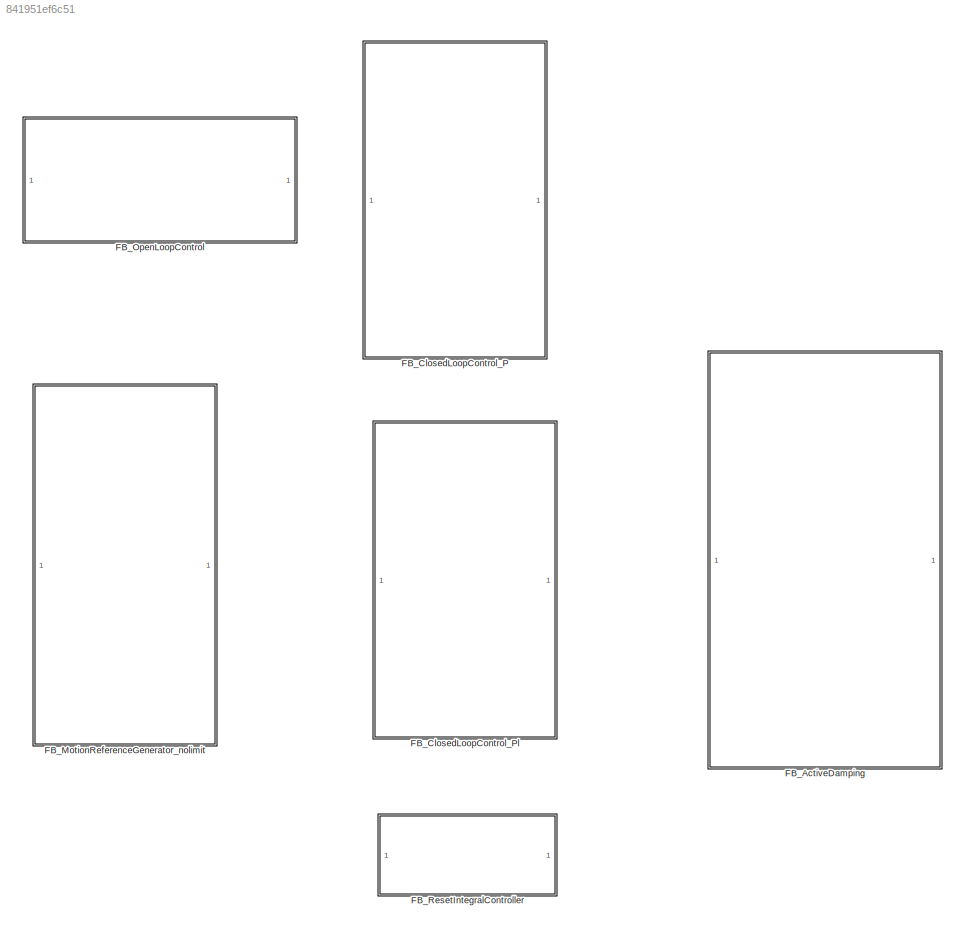
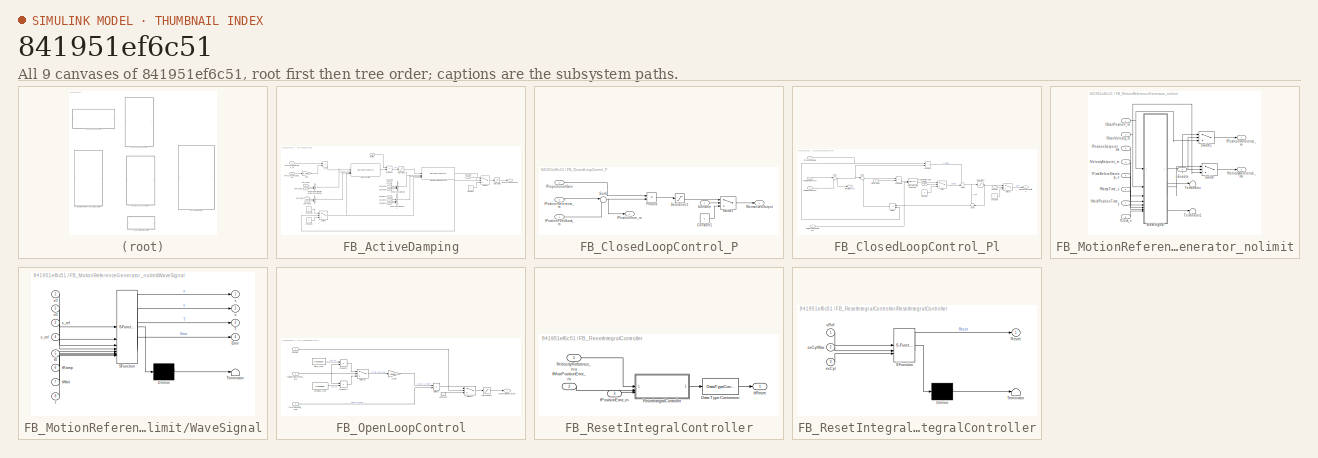
[diagram: thumbnail index - all 9 canvases of the model, root first then tree order]
MODEL slx_841951ef6c51
KIND model
CONFIG AbsTol = auto
CONFIG EnableMultiTasking = off
CONFIG FixedStep = 0.001
CONFIG MaxStep = auto
CONFIG MinStep = auto
CONFIG RelTol = 1e-3
CONFIG SampleTimeConstraint = Unconstrained
CONFIG SolverName = FixedStepDiscrete
CONFIG StartTime = 0.0
CONFIG StopTime = 40
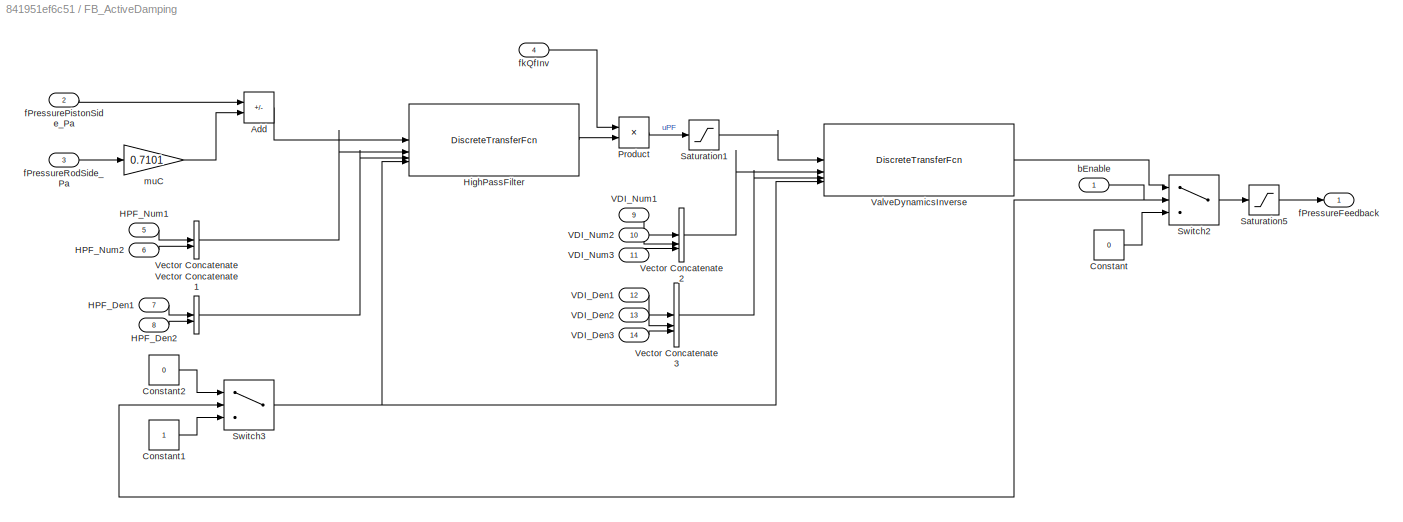
BLOCK [SubSystem] FB_ActiveDamping
  TreatAsAtomicUnit = on
BLOCK [Sum] FB_ActiveDamping/Add
  IconShape = rectangular
  Inputs = +-
BLOCK [Constant] FB_ActiveDamping/Constant
  Value = 0
BLOCK [Constant] FB_ActiveDamping/Constant1
BLOCK [Constant] FB_ActiveDamping/Constant2
  Value = 0
BLOCK [Inport] FB_ActiveDamping/HPF_Den1
  NameLocation = top
  Port = 7
BLOCK [Inport] FB_ActiveDamping/HPF_Den2
  NameLocation = top
  Port = 8
BLOCK [Inport] FB_ActiveDamping/HPF_Num1
  NameLocation = top
  Port = 5
BLOCK [Inport] FB_ActiveDamping/HPF_Num2
  NameLocation = top
  Port = 6
BLOCK [DiscreteTransferFcn] FB_ActiveDamping/HighPassFilter
  Denominator = [1 -0.9954]
  DenominatorSource = Input port
  ExternalReset = Level hold
  InputPortMap = u0,p1,p3,r7
  Numerator = [3.786e-11 -3.786e-11]
  NumeratorSource = Input port
  a0EqualsOne = on
BLOCK [Product] FB_ActiveDamping/Product
BLOCK [Saturate] FB_ActiveDamping/Saturation1
  LowerLimit = -1
  UpperLimit = 1
BLOCK [Saturate] FB_ActiveDamping/Saturation5
  LowerLimit = -1
  UpperLimit = 1
BLOCK [Switch] FB_ActiveDamping/Switch2
  Criteria = u2 > Threshold
  InputSameDT = off
  SaturateOnIntegerOverflow = off
BLOCK [Switch] FB_ActiveDamping/Switch3
  Criteria = u2 > Threshold
  InputSameDT = off
  SaturateOnIntegerOverflow = off
BLOCK [Inport] FB_ActiveDamping/VDI_Den1
  NameLocation = top
  Port = 12
BLOCK [Inport] FB_ActiveDamping/VDI_Den2
  NameLocation = top
  Port = 13
BLOCK [Inport] FB_ActiveDamping/VDI_Den3
  NameLocation = top
  Port = 14
BLOCK [Inport] FB_ActiveDamping/VDI_Num1
  NameLocation = top
  Port = 9
BLOCK [Inport] FB_ActiveDamping/VDI_Num2
  NameLocation = top
  Port = 10
BLOCK [Inport] FB_ActiveDamping/VDI_Num3
  NameLocation = top
  Port = 11
BLOCK [DiscreteTransferFcn] FB_ActiveDamping/ValveDynamicsInverse
  Denominator = [1 -1.721 0.7408]
  DenominatorSource = Input port
  ExternalReset = Level hold
  InputPortMap = u0,p1,p3,r7
  Numerator = [25 -48.83 23.85]
  NumeratorSource = Input port
  a0EqualsOne = on
BLOCK [Concatenate] FB_ActiveDamping/Vector Concatenate
BLOCK [Concatenate] FB_ActiveDamping/Vector Concatenate1
BLOCK [Concatenate] FB_ActiveDamping/Vector Concatenate2
  NumInputs = 3
BLOCK [Concatenate] FB_ActiveDamping/Vector Concatenate3
  NumInputs = 3
BLOCK [Inport] FB_ActiveDamping/bEnable
  NameLocation = top
  OutDataTypeStr = boolean
BLOCK [Outport] FB_ActiveDamping/fPressureFeedback
  VectorParamsAs1DForOutWhenUnconnected = off
BLOCK [Inport] FB_ActiveDamping/fPressurePistonSide_Pa
  NameLocation = top
  Port = 2
BLOCK [Inport] FB_ActiveDamping/fPressureRodSide_Pa
  NameLocation = top
  Port = 3
BLOCK [Inport] FB_ActiveDamping/fkQfInv
  NameLocation = top
  Port = 4
BLOCK [Gain] FB_ActiveDamping/muC
  Gain = 0.7101
BLOCK [SubSystem] FB_ClosedLoopControl_P
  TreatAsAtomicUnit = on
BLOCK [Constant] FB_ClosedLoopControl_P/Constant1
  Value = 0
BLOCK [Product] FB_ClosedLoopControl_P/Product
BLOCK [Saturate] FB_ClosedLoopControl_P/Saturation1
  LowerLimit = -1
  UpperLimit = 1
BLOCK [Sum] FB_ClosedLoopControl_P/Sum1
  Inputs = |+-
BLOCK [Switch] FB_ClosedLoopControl_P/Switch1
  Criteria = u2 > Threshold
  InputSameDT = off
  SaturateOnIntegerOverflow = off
BLOCK [Inport] FB_ClosedLoopControl_P/bEnable
  OutDataTypeStr = boolean
BLOCK [Outport] FB_ClosedLoopControl_P/fNormalizedOutput
  NameLocation = top
  VectorParamsAs1DForOutWhenUnconnected = off
BLOCK [Outport] FB_ClosedLoopControl_P/fPositionError_m
  Port = 2
  VectorParamsAs1DForOutWhenUnconnected = off
BLOCK [Inport] FB_ClosedLoopControl_P/fPositionFeedback_m
  Port = 4
BLOCK [Inport] FB_ClosedLoopControl_P/fPositionReference_m
  Port = 3
BLOCK [Inport] FB_ClosedLoopControl_P/fProportionalGain
  Port = 2
BLOCK [SubSystem] FB_ClosedLoopControl_Pl
  TreatAsAtomicUnit = on
BLOCK [Constant] FB_ClosedLoopControl_Pl/Constant
  Value = 0
BLOCK [Constant] FB_ClosedLoopControl_Pl/Constant1
  Value = 0
BLOCK [DiscreteIntegrator] FB_ClosedLoopControl_Pl/Discrete-Time Integrator
  ExternalReset = sampled level
  ICPrevOutput = DiscIntNeverNeededParam
  ICPrevScaledInput = DiscIntNeverNeededParam
  InitialConditionSetting = Auto
  LimitOutput = on
  LowerSaturationLimit = -1
  SampleTime = -1
  UpperSaturationLimit = 1
BLOCK [Product] FB_ClosedLoopControl_Pl/Divide
  Inputs = */
  NameLocation = top
BLOCK [Product] FB_ClosedLoopControl_Pl/Product
BLOCK [Product] FB_ClosedLoopControl_Pl/Product2
BLOCK [Saturate] FB_ClosedLoopControl_Pl/Saturation1
  LowerLimit = -1
  UpperLimit = 1
BLOCK [Sum] FB_ClosedLoopControl_Pl/Sum1
  Inputs = |+-
BLOCK [Sum] FB_ClosedLoopControl_Pl/Sum2
  Inputs = |++
BLOCK [Sum] FB_ClosedLoopControl_Pl/Sum3
  Inputs = -+|
  NameLocation = top
BLOCK [Sum] FB_ClosedLoopControl_Pl/Sum5
  Inputs = ++|
BLOCK [Switch] FB_ClosedLoopControl_Pl/Switch
  Criteria = u2 > Threshold
  InputSameDT = off
  SaturateOnIntegerOverflow = off
BLOCK [Switch] FB_ClosedLoopControl_Pl/Switch1
  Criteria = u2 > Threshold
  InputSameDT = off
  SaturateOnIntegerOverflow = off
BLOCK [Inport] FB_ClosedLoopControl_Pl/bActivateIntegralController
  OutDataTypeStr = boolean
  Port = 2
BLOCK [Inport] FB_ClosedLoopControl_Pl/bEnable
  OutDataTypeStr = boolean
BLOCK [Inport] FB_ClosedLoopControl_Pl/bIntegralControllReset
  OutDataTypeStr = boolean
  Port = 7
BLOCK [Outport] FB_ClosedLoopControl_Pl/fClosedLoopPosition
  NameLocation = top
  VectorParamsAs1DForOutWhenUnconnected = off
BLOCK [Inport] FB_ClosedLoopControl_Pl/fIntegralGain
  Port = 4
BLOCK [Outport] FB_ClosedLoopControl_Pl/fPositionError
  Port = 2
  VectorParamsAs1DForOutWhenUnconnected = off
BLOCK [Inport] FB_ClosedLoopControl_Pl/fPositionFeedback
  Port = 6
BLOCK [Inport] FB_ClosedLoopControl_Pl/fPositionReference
  Port = 5
BLOCK [Inport] FB_ClosedLoopControl_Pl/fProportionalGain
  Port = 3
BLOCK [SubSystem] FB_MotionReferenceGenerator_nolimit
  TreatAsAtomicUnit = on
  VariantControl = Ramp_Profile
BLOCK [Switch] FB_MotionReferenceGenerator_nolimit/Switch
  Criteria = u2 > Threshold
  InputSameDT = off
  SaturateOnIntegerOverflow = off
BLOCK [Switch] FB_MotionReferenceGenerator_nolimit/Switch1
  Criteria = u2 > Threshold
  InputSameDT = off
  SaturateOnIntegerOverflow = off
BLOCK [Terminator] FB_MotionReferenceGenerator_nolimit/Terminator
BLOCK [Terminator] FB_MotionReferenceGenerator_nolimit/Terminator1
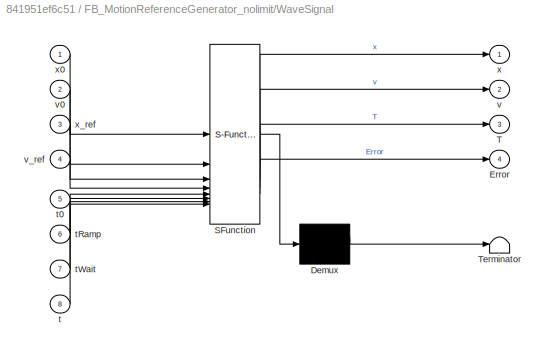
BLOCK [SubSystem] FB_MotionReferenceGenerator_nolimit/WaveSignal
  ErrorFcn = Stateflow.Translate.translate
  PermitHierarchicalResolution = ExplicitOnly
  SFBlockType = MATLAB Function
  TreatAsAtomicUnit = on
BLOCK [Demux] FB_MotionReferenceGenerator_nolimit/WaveSignal/ Demux 
  Outputs = 1
BLOCK [S-Function] FB_MotionReferenceGenerator_nolimit/WaveSignal/ SFunction 
  EnableBusSupport = on
  FunctionName = sf_sfun
  PortCounts = [8 5]
  SFcnIsStateOwnerBlock = off
  SFunctionDeploymentMode = off
  Tag = Stateflow S-Function 1
BLOCK [Terminator] FB_MotionReferenceGenerator_nolimit/WaveSignal/ Terminator 
BLOCK [Outport] FB_MotionReferenceGenerator_nolimit/WaveSignal/Error
  Port = 4
  VectorParamsAs1DForOutWhenUnconnected = off
BLOCK [Outport] FB_MotionReferenceGenerator_nolimit/WaveSignal/T
  Port = 3
  VectorParamsAs1DForOutWhenUnconnected = off
BLOCK [Inport] FB_MotionReferenceGenerator_nolimit/WaveSignal/t
  Port = 8
BLOCK [Inport] FB_MotionReferenceGenerator_nolimit/WaveSignal/t0
  Port = 5
BLOCK [Inport] FB_MotionReferenceGenerator_nolimit/WaveSignal/tRamp
  Port = 6
BLOCK [Inport] FB_MotionReferenceGenerator_nolimit/WaveSignal/tWait
  Port = 7
BLOCK [Outport] FB_MotionReferenceGenerator_nolimit/WaveSignal/v
  Port = 2
  VectorParamsAs1DForOutWhenUnconnected = off
BLOCK [Inport] FB_MotionReferenceGenerator_nolimit/WaveSignal/v0
  Port = 2
BLOCK [Inport] FB_MotionReferenceGenerator_nolimit/WaveSignal/v_ref
  Port = 4
BLOCK [Outport] FB_MotionReferenceGenerator_nolimit/WaveSignal/x
  VectorParamsAs1DForOutWhenUnconnected = off
BLOCK [Inport] FB_MotionReferenceGenerator_nolimit/WaveSignal/x0
BLOCK [Inport] FB_MotionReferenceGenerator_nolimit/WaveSignal/x_ref
  Port = 3
BLOCK [Inport] FB_MotionReferenceGenerator_nolimit/bEnable
  OutDataTypeStr = boolean
  Port = 9
BLOCK [Inport] FB_MotionReferenceGenerator_nolimit/fClock_s
  Port = 8
BLOCK [Inport] FB_MotionReferenceGenerator_nolimit/fHoldPositionTime_s
  Port = 7
BLOCK [Outport] FB_MotionReferenceGenerator_nolimit/fPositionReference_m
  VectorParamsAs1DForOutWhenUnconnected = off
BLOCK [Inport] FB_MotionReferenceGenerator_nolimit/fPositionSetpoint_ms
  Port = 3
BLOCK [Inport] FB_MotionReferenceGenerator_nolimit/fRampTime_s
  Port = 6
BLOCK [Inport] FB_MotionReferenceGenerator_nolimit/fStartPosition_m
BLOCK [Inport] FB_MotionReferenceGenerator_nolimit/fStartVelocity_m
  Port = 2
BLOCK [Inport] FB_MotionReferenceGenerator_nolimit/fTimeBeforeStarting_s
  Port = 5
BLOCK [Outport] FB_MotionReferenceGenerator_nolimit/fVelocityReference_ms
  Port = 2
  VectorParamsAs1DForOutWhenUnconnected = off
BLOCK [Inport] FB_MotionReferenceGenerator_nolimit/fVelocitySetpoint_m
  Port = 4
BLOCK [SubSystem] FB_OpenLoopControl
  TreatAsAtomicUnit = on
BLOCK [Constant] FB_OpenLoopControl/Annnulus_Area
  Value = 0.0023562
BLOCK [Constant] FB_OpenLoopControl/Bore_Area
  Value = 0.0033183
BLOCK [Constant] FB_OpenLoopControl/Constant
  Value = 0
BLOCK [Product] FB_OpenLoopControl/Divide2
  Inputs = */
BLOCK [Gain] FB_OpenLoopControl/Gain1
  Gain = 60000
BLOCK [Product] FB_OpenLoopControl/Product1
BLOCK [Product] FB_OpenLoopControl/Product3
BLOCK [Saturate] FB_OpenLoopControl/Saturation1
  LowerLimit = -1
  UpperLimit = 1
BLOCK [Switch] FB_OpenLoopControl/Switch1
  Criteria = u2 > Threshold
  InputSameDT = off
  SaturateOnIntegerOverflow = off
BLOCK [Switch] FB_OpenLoopControl/Switch2
  InputSameDT = off
  SaturateOnIntegerOverflow = off
BLOCK [Inport] FB_OpenLoopControl/bEnable
  OutDataTypeStr = boolean
BLOCK [Inport] FB_OpenLoopControl/fMaxValveFlow_lmin
  Port = 3
BLOCK [Outport] FB_OpenLoopControl/fNormalizedOutput
  VectorParamsAs1DForOutWhenUnconnected = off
BLOCK [Inport] FB_OpenLoopControl/fVelocityReference_ms
  Port = 2
BLOCK [SubSystem] FB_ResetIntegralController
  TreatAsAtomicUnit = on
BLOCK [DataTypeConversion] FB_ResetIntegralController/Data Type Conversion
  OutDataTypeStr = boolean
  RndMeth = Floor
  SaturateOnIntegerOverflow = off
BLOCK [SubSystem] FB_ResetIntegralController/ResetIntegralController
  ErrorFcn = Stateflow.Translate.translate
  PermitHierarchicalResolution = ExplicitOnly
  SFBlockType = MATLAB Function
  TreatAsAtomicUnit = on
BLOCK [Demux] FB_ResetIntegralController/ResetIntegralController/ Demux 
  Outputs = 1
BLOCK [S-Function] FB_ResetIntegralController/ResetIntegralController/ SFunction 
  EnableBusSupport = on
  FunctionName = sf_sfun
  PortCounts = [3 2]
  SFcnIsStateOwnerBlock = off
  SFunctionDeploymentMode = off
  Tag = Stateflow S-Function 3
BLOCK [Terminator] FB_ResetIntegralController/ResetIntegralController/ Terminator 
BLOCK [Outport] FB_ResetIntegralController/ResetIntegralController/Reset
BLOCK [Inport] FB_ResetIntegralController/ResetIntegralController/exCyl
  Port = 3
BLOCK [Inport] FB_ResetIntegralController/ResetIntegralController/exCylMax
  Port = 2
BLOCK [Inport] FB_ResetIntegralController/ResetIntegralController/vRef
BLOCK [Outport] FB_ResetIntegralController/bReset
  OutDataTypeStr = boolean
BLOCK [Inport] FB_ResetIntegralController/fMaxPositionError_m
  Port = 2
BLOCK [Inport] FB_ResetIntegralController/fPositionError_m
  Port = 3
BLOCK [Inport] FB_ResetIntegralController/fVelocityReference_ms
LINE FB_ActiveDamping/Add:1 -> FB_ActiveDamping/HighPassFilter:1
LINE FB_ActiveDamping/Constant1:1 -> FB_ActiveDamping/Switch3:3
LINE FB_ActiveDamping/Constant2:1 -> FB_ActiveDamping/Switch3:1
LINE FB_ActiveDamping/Constant:1 -> FB_ActiveDamping/Switch2:3
LINE FB_ActiveDamping/HPF_Den1:1 -> FB_ActiveDamping/Vector Concatenate1:1
LINE FB_ActiveDamping/HPF_Den2:1 -> FB_ActiveDamping/Vector Concatenate1:2
LINE FB_ActiveDamping/HPF_Num1:1 -> FB_ActiveDamping/Vector Concatenate:1
LINE FB_ActiveDamping/HPF_Num2:1 -> FB_ActiveDamping/Vector Concatenate:2
LINE FB_ActiveDamping/HighPassFilter:1 -> FB_ActiveDamping/Product:2
LINE FB_ActiveDamping/Product:1 -> FB_ActiveDamping/Saturation1:1
LINE FB_ActiveDamping/Saturation1:1 -> FB_ActiveDamping/ValveDynamicsInverse:1
LINE FB_ActiveDamping/Saturation5:1 -> FB_ActiveDamping/fPressureFeedback:1
LINE FB_ActiveDamping/Switch2:1 -> FB_ActiveDamping/Saturation5:1
NET FB_ActiveDamping/Switch3:1 -> FB_ActiveDamping/HighPassFilter:4, FB_ActiveDamping/ValveDynamicsInverse:4
LINE FB_ActiveDamping/VDI_Den1:1 -> FB_ActiveDamping/Vector Concatenate3:1
LINE FB_ActiveDamping/VDI_Den2:1 -> FB_ActiveDamping/Vector Concatenate3:2
LINE FB_ActiveDamping/VDI_Den3:1 -> FB_ActiveDamping/Vector Concatenate3:3
LINE FB_ActiveDamping/VDI_Num1:1 -> FB_ActiveDamping/Vector Concatenate2:1
LINE FB_ActiveDamping/VDI_Num2:1 -> FB_ActiveDamping/Vector Concatenate2:2
LINE FB_ActiveDamping/VDI_Num3:1 -> FB_ActiveDamping/Vector Concatenate2:3
LINE FB_ActiveDamping/ValveDynamicsInverse:1 -> FB_ActiveDamping/Switch2:1
LINE FB_ActiveDamping/Vector Concatenate1:1 -> FB_ActiveDamping/HighPassFilter:3
LINE FB_ActiveDamping/Vector Concatenate2:1 -> FB_ActiveDamping/ValveDynamicsInverse:2
LINE FB_ActiveDamping/Vector Concatenate3:1 -> FB_ActiveDamping/ValveDynamicsInverse:3
LINE FB_ActiveDamping/Vector Concatenate:1 -> FB_ActiveDamping/HighPassFilter:2
NET FB_ActiveDamping/bEnable:1 -> FB_ActiveDamping/Switch2:2, FB_ActiveDamping/Switch3:2
LINE FB_ActiveDamping/fPressurePistonSide_Pa:1 -> FB_ActiveDamping/Add:1
LINE FB_ActiveDamping/fPressureRodSide_Pa:1 -> FB_ActiveDamping/muC:1
LINE FB_ActiveDamping/fkQfInv:1 -> FB_ActiveDamping/Product:1
LINE FB_ActiveDamping/muC:1 -> FB_ActiveDamping/Add:2
LINE FB_ClosedLoopControl_P/Constant1:1 -> FB_ClosedLoopControl_P/Switch1:3
LINE FB_ClosedLoopControl_P/Product:1 -> FB_ClosedLoopControl_P/Saturation1:1
LINE FB_ClosedLoopControl_P/Saturation1:1 -> FB_ClosedLoopControl_P/Switch1:1
NET FB_ClosedLoopControl_P/Sum1:1 -> FB_ClosedLoopControl_P/Product:2, FB_ClosedLoopControl_P/fPositionError_m:1
LINE FB_ClosedLoopControl_P/Switch1:1 -> FB_ClosedLoopControl_P/fNormalizedOutput:1
LINE FB_ClosedLoopControl_P/bEnable:1 -> FB_ClosedLoopControl_P/Switch1:2
LINE FB_ClosedLoopControl_P/fPositionFeedback_m:1 -> FB_ClosedLoopControl_P/Sum1:2
LINE FB_ClosedLoopControl_P/fPositionReference_m:1 -> FB_ClosedLoopControl_P/Sum1:1
LINE FB_ClosedLoopControl_P/fProportionalGain:1 -> FB_ClosedLoopControl_P/Product:1
LINE FB_ClosedLoopControl_Pl/Constant1:1 -> FB_ClosedLoopControl_Pl/Switch1:3
LINE FB_ClosedLoopControl_Pl/Constant:1 -> FB_ClosedLoopControl_Pl/Switch:3
LINE FB_ClosedLoopControl_Pl/Discrete-Time Integrator:1 -> FB_ClosedLoopControl_Pl/Switch:1
LINE FB_ClosedLoopControl_Pl/Divide:1 -> FB_ClosedLoopControl_Pl/Sum2:2
LINE FB_ClosedLoopControl_Pl/Product2:1 -> FB_ClosedLoopControl_Pl/Discrete-Time Integrator:1
LINE FB_ClosedLoopControl_Pl/Product:1 -> FB_ClosedLoopControl_Pl/Sum5:1
NET FB_ClosedLoopControl_Pl/Saturation1:1 -> FB_ClosedLoopControl_Pl/Sum3:2, FB_ClosedLoopControl_Pl/Switch1:1
NET FB_ClosedLoopControl_Pl/Sum1:1 -> FB_ClosedLoopControl_Pl/Product:2, FB_ClosedLoopControl_Pl/Sum2:1, FB_ClosedLoopControl_Pl/fPositionError:1
LINE FB_ClosedLoopControl_Pl/Sum2:1 -> FB_ClosedLoopControl_Pl/Product2:1
LINE FB_ClosedLoopControl_Pl/Sum3:1 -> FB_ClosedLoopControl_Pl/Divide:1
NET FB_ClosedLoopControl_Pl/Sum5:1 -> FB_ClosedLoopControl_Pl/Saturation1:1, FB_ClosedLoopControl_Pl/Sum3:1
LINE FB_ClosedLoopControl_Pl/Switch1:1 -> FB_ClosedLoopControl_Pl/fClosedLoopPosition:1
LINE FB_ClosedLoopControl_Pl/Switch:1 -> FB_ClosedLoopControl_Pl/Sum5:2
LINE FB_ClosedLoopControl_Pl/bActivateIntegralController:1 -> FB_ClosedLoopControl_Pl/Switch:2
LINE FB_ClosedLoopControl_Pl/bEnable:1 -> FB_ClosedLoopControl_Pl/Switch1:2
LINE FB_ClosedLoopControl_Pl/bIntegralControllReset:1 -> FB_ClosedLoopControl_Pl/Discrete-Time Integrator:2
LINE FB_ClosedLoopControl_Pl/fIntegralGain:1 -> FB_ClosedLoopControl_Pl/Product2:2
LINE FB_ClosedLoopControl_Pl/fPositionFeedback:1 -> FB_ClosedLoopControl_Pl/Sum1:2
LINE FB_ClosedLoopControl_Pl/fPositionReference:1 -> FB_ClosedLoopControl_Pl/Sum1:1
NET FB_ClosedLoopControl_Pl/fProportionalGain:1 -> FB_ClosedLoopControl_Pl/Divide:2, FB_ClosedLoopControl_Pl/Product:1
LINE FB_MotionReferenceGenerator_nolimit/Switch1:1 -> FB_MotionReferenceGenerator_nolimit/fPositionReference_m:1
LINE FB_MotionReferenceGenerator_nolimit/Switch:1 -> FB_MotionReferenceGenerator_nolimit/fVelocityReference_ms:1
LINE FB_MotionReferenceGenerator_nolimit/WaveSignal:1 -> FB_MotionReferenceGenerator_nolimit/Switch1:1
LINE FB_MotionReferenceGenerator_nolimit/WaveSignal:2 -> FB_MotionReferenceGenerator_nolimit/Switch:1
LINE FB_MotionReferenceGenerator_nolimit/WaveSignal:3 -> FB_MotionReferenceGenerator_nolimit/Terminator:1
LINE FB_MotionReferenceGenerator_nolimit/WaveSignal:4 -> FB_MotionReferenceGenerator_nolimit/Terminator1:1
NET FB_MotionReferenceGenerator_nolimit/bEnable:1 -> FB_MotionReferenceGenerator_nolimit/Switch1:2, FB_MotionReferenceGenerator_nolimit/Switch:2
LINE FB_MotionReferenceGenerator_nolimit/fClock_s:1 -> FB_MotionReferenceGenerator_nolimit/WaveSignal:8
LINE FB_MotionReferenceGenerator_nolimit/fHoldPositionTime_s:1 -> FB_MotionReferenceGenerator_nolimit/WaveSignal:7
LINE FB_MotionReferenceGenerator_nolimit/fPositionSetpoint_ms:1 -> FB_MotionReferenceGenerator_nolimit/WaveSignal:3
LINE FB_MotionReferenceGenerator_nolimit/fRampTime_s:1 -> FB_MotionReferenceGenerator_nolimit/WaveSignal:6
NET FB_MotionReferenceGenerator_nolimit/fStartPosition_m:1 -> FB_MotionReferenceGenerator_nolimit/Switch1:3, FB_MotionReferenceGenerator_nolimit/WaveSignal:1
NET FB_MotionReferenceGenerator_nolimit/fStartVelocity_m:1 -> FB_MotionReferenceGenerator_nolimit/Switch:3, FB_MotionReferenceGenerator_nolimit/WaveSignal:2
LINE FB_MotionReferenceGenerator_nolimit/fTimeBeforeStarting_s:1 -> FB_MotionReferenceGenerator_nolimit/WaveSignal:5
LINE FB_MotionReferenceGenerator_nolimit/fVelocitySetpoint_m:1 -> FB_MotionReferenceGenerator_nolimit/WaveSignal:4
LINE FB_OpenLoopControl/Annnulus_Area:1 -> FB_OpenLoopControl/Product3:2
LINE FB_OpenLoopControl/Bore_Area:1 -> FB_OpenLoopControl/Product1:1
LINE FB_OpenLoopControl/Constant:1 -> FB_OpenLoopControl/Switch1:3
LINE FB_OpenLoopControl/Divide2:1 -> FB_OpenLoopControl/Switch1:1
LINE FB_OpenLoopControl/Gain1:1 -> FB_OpenLoopControl/Divide2:1
LINE FB_OpenLoopControl/Product1:1 -> FB_OpenLoopControl/Switch2:1
LINE FB_OpenLoopControl/Product3:1 -> FB_OpenLoopControl/Switch2:3
LINE FB_OpenLoopControl/Saturation1:1 -> FB_OpenLoopControl/fNormalizedOutput:1
LINE FB_OpenLoopControl/Switch1:1 -> FB_OpenLoopControl/Saturation1:1
LINE FB_OpenLoopControl/Switch2:1 -> FB_OpenLoopControl/Gain1:1
LINE FB_OpenLoopControl/bEnable:1 -> FB_OpenLoopControl/Switch1:2
LINE FB_OpenLoopControl/fMaxValveFlow_lmin:1 -> FB_OpenLoopControl/Divide2:2
NET FB_OpenLoopControl/fVelocityReference_ms:1 -> FB_OpenLoopControl/Product1:2, FB_OpenLoopControl/Product3:1, FB_OpenLoopControl/Switch2:2
LINE FB_ResetIntegralController/Data Type Conversion:1 -> FB_ResetIntegralController/bReset:1
LINE FB_ResetIntegralController/ResetIntegralController:1 -> FB_ResetIntegralController/Data Type Conversion:1
LINE FB_ResetIntegralController/fMaxPositionError_m:1 -> FB_ResetIntegralController/ResetIntegralController:2
LINE FB_ResetIntegralController/fPositionError_m:1 -> FB_ResetIntegralController/ResetIntegralController:3
LINE FB_ResetIntegralController/fVelocityReference_ms:1 -> FB_ResetIntegralController/ResetIntegralController:1
note: NET lines group one-source signal fan-out (src -> all destinations, sorted); 1:1 wires keep LINE
CHART FB_MotionReferenceGenerator_nolimit/WaveSignal states=1 transitions=1
  STATE_LABEL 'eML_blk_kernel()'
  STATE_LABEL 'SCRIPT:\nfunction [x,v,T, Error] = fcn(x0,v0, x_ref,v_ref,t0,tRamp,tWait,t)\nx_SP = x_ref - x0;\nvs=v_ref;\nslopeExt=v0-vs;\nslopeRetr=-vs-v0;\n\nas = vs/tRamp;\ns_acc=(vs^2-v0^2)/as;\n\ntHold=(x_SP-s_acc)/vs;\n\nif tHold < 0 \nError = 1;\nelse \nError = 0;\nend\n\nt1=tRamp;\nt2=tHold; \nt3=tRamp;\nt4=tWait;\nt5=t1;\nt6=t2;\nt7=t3;\n\nx = x0;\nx1 = x0 + v0*((t0+t1)-t0)-(slopeExt/t1)*((t0+t1)-t0)^2/2;\nx2 = x1 + vs*((t0+t1+t2...<+1188ch>'
CHART FB_ResetIntegralController/ResetIntegralController states=1 transitions=1
  STATE_LABEL 'eML_blk_kernel()'
  STATE_LABEL 'SCRIPT:\nfunction Reset = fcn(vRef, exCylMax, exCyl)\n\nif abs(vRef) > 0 || abs(exCyl) > exCylMax\nReset = 0;\nelse \nReset = 1;\nend '
CHART  states=0 transitions=0
CHART  states=0 transitions=0
